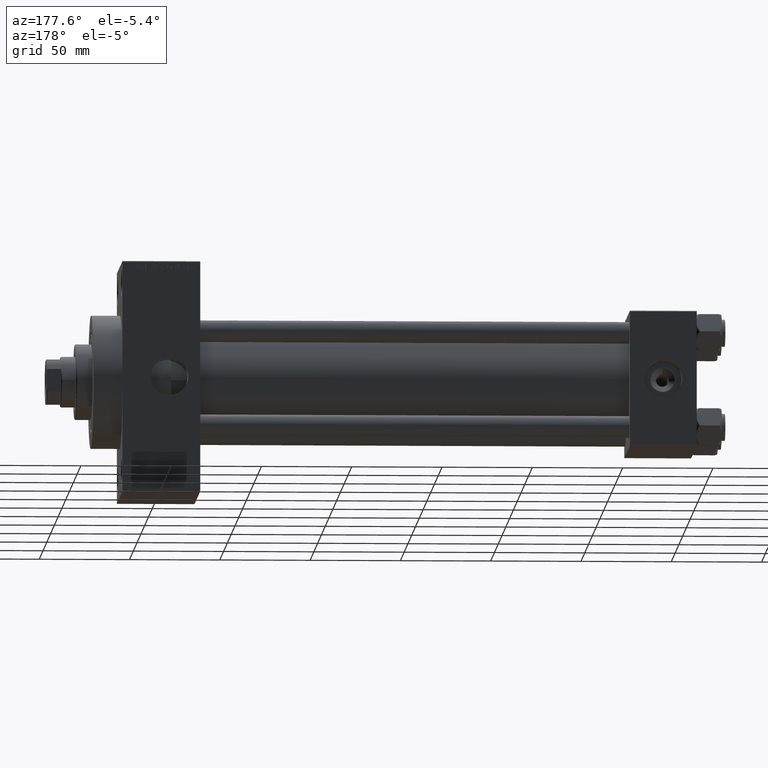
[diagram: clean part render]
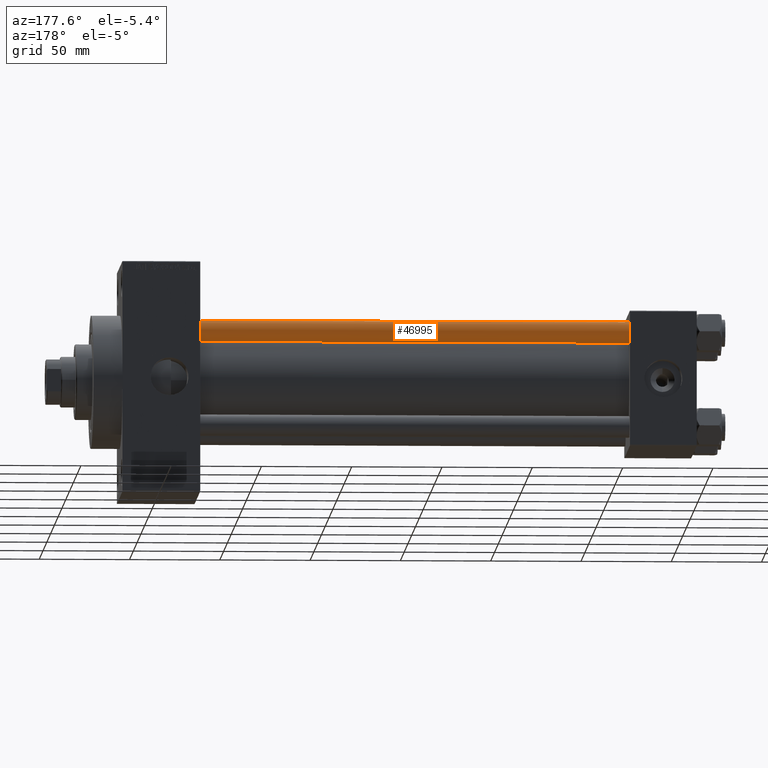
[diagram: same view with one face highlighted and labeled with its STEP entity id]
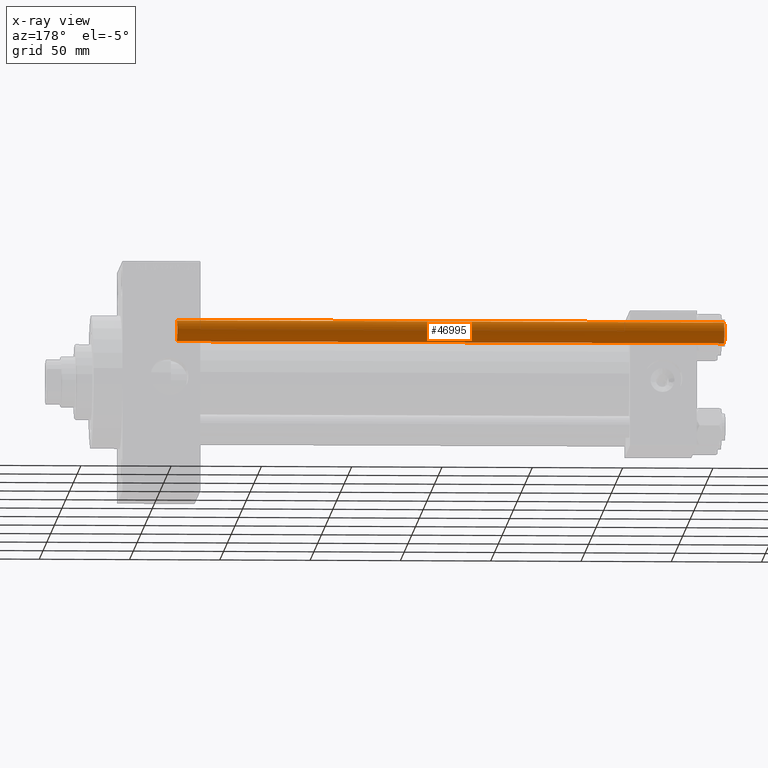
[diagram: x-ray of the same camera — body ghosted, the highlighted face saturated]
A machine part, auxiliary view. The second image highlights one B-rep face of the part: STEP entity #46995.
The next image is the same camera in x-ray: the body ghosted, the highlighted face saturated — about 0% of this face is hidden behind the body in this view.
In plain terms, the highlighted cylindrical surface (edge-blend (fillet) strip) has radius 6 mm, axis along (-1, -0, 0).
Its self-contained STEP definition (entity closure, byte-faithful):
#553 = EDGE_CURVE ( 'NONE', #31626, #16705, #36066, .T. ) ;
#3003 = CARTESIAN_POINT ( 'NONE',  ( -6.000000000000000888, 0.000000000000000000, 0.4999999999999449329 ) ) ;
#3006 = FACE_OUTER_BOUND ( 'NONE', #40743, .T. ) ;
#3702 = VERTEX_POINT ( 'NONE', #39211 ) ;
#4379 = AXIS2_PLACEMENT_3D ( 'NONE', #34252, #49867, #30401 ) ;
#5330 = DIRECTION ( 'NONE',  ( -0.000000000000000000, -0.000000000000000000, -1.000000000000000000 ) ) ;
#6001 = CIRCLE ( 'NONE', #38005, 6.000000000000000888 ) ;
#6952 = EDGE_CURVE ( 'NONE', #3702, #30593, #31780, .T. ) ;
#7601 = CARTESIAN_POINT ( 'NONE',  ( 6.000000000000000888, 7.347880794884120722E-16, 303.5000000000000000 ) ) ;
#11640 = DIRECTION ( 'NONE',  ( 1.000000000000000000, 0.000000000000000000, 0.000000000000000000 ) ) ;
#13876 = VECTOR ( 'NONE', #28182, 1000.000000000000000 ) ;
#15273 = ORIENTED_EDGE ( 'NONE', *, *, #553, .T. ) ;
#16154 = CARTESIAN_POINT ( 'NONE',  ( -6.000000000000000888, 0.000000000000000000, 304.0000000000000000 ) ) ;
#16705 = VERTEX_POINT ( 'NONE', #45620 ) ;
#18096 = ORIENTED_EDGE ( 'NONE', *, *, #28529, .T. ) ;
#18138 = DIRECTION ( 'NONE',  ( -0.000000000000000000, -0.000000000000000000, 1.000000000000000000 ) ) ;
#18623 = CYLINDRICAL_SURFACE ( 'NONE', #4379, 6.000000000000000888 ) ;
#22214 = CARTESIAN_POINT ( 'NONE',  ( 0.000000000000000000, 0.000000000000000000, 0.4999999999999449329 ) ) ;
#27759 = DIRECTION ( 'NONE',  ( 0.000000000000000000, 0.000000000000000000, -1.000000000000000000 ) ) ;
#28182 = DIRECTION ( 'NONE',  ( -0.000000000000000000, -0.000000000000000000, -1.000000000000000000 ) ) ;
#28529 = EDGE_CURVE ( 'NONE', #16705, #30593, #36808, .T. ) ;
#30401 = DIRECTION ( 'NONE',  ( -1.000000000000000000, 0.000000000000000000, 0.000000000000000000 ) ) ;
#30593 = VERTEX_POINT ( 'NONE', #3003 ) ;
#31626 = VERTEX_POINT ( 'NONE', #7601 ) ;
#31780 = LINE ( 'NONE', #16154, #13876 ) ;
#32079 = ORIENTED_EDGE ( 'NONE', *, *, #6952, .F. ) ;
#34252 = CARTESIAN_POINT ( 'NONE',  ( 0.000000000000000000, 0.000000000000000000, 304.0000000000000000 ) ) ;
#34947 = VECTOR ( 'NONE', #5330, 1000.000000000000000 ) ;
#35463 = CARTESIAN_POINT ( 'NONE',  ( 0.000000000000000000, 0.000000000000000000, 303.5000000000000000 ) ) ;
#36066 = LINE ( 'NONE', #39666, #34947 ) ;
#36808 = CIRCLE ( 'NONE', #40882, 6.000000000000000888 ) ;
#38005 = AXIS2_PLACEMENT_3D ( 'NONE', #35463, #27759, #11640 ) ;
#39211 = CARTESIAN_POINT ( 'NONE',  ( -6.000000000000000888, 0.000000000000000000, 303.5000000000000000 ) ) ;
#39666 = CARTESIAN_POINT ( 'NONE',  ( 6.000000000000000888, 7.347880794884120722E-16, 304.0000000000000000 ) ) ;
#40743 = EDGE_LOOP ( 'NONE', ( #41197, #15273, #18096, #32079 ) ) ;
#40882 = AXIS2_PLACEMENT_3D ( 'NONE', #22214, #18138, #41195 ) ;
#41195 = DIRECTION ( 'NONE',  ( 1.000000000000000000, 0.000000000000000000, 0.000000000000000000 ) ) ;
#41197 = ORIENTED_EDGE ( 'NONE', *, *, #49223, .T. ) ;
#45620 = CARTESIAN_POINT ( 'NONE',  ( 6.000000000000000888, 7.347880794884120722E-16, 0.4999999999999449329 ) ) ;
#46995 = ADVANCED_FACE ( 'NONE', ( #3006 ), #18623, .T. ) ;
#49223 = EDGE_CURVE ( 'NONE', #3702, #31626, #6001, .T. ) ;
#49867 = DIRECTION ( 'NONE',  ( -0.000000000000000000, -0.000000000000000000, -1.000000000000000000 ) ) ;